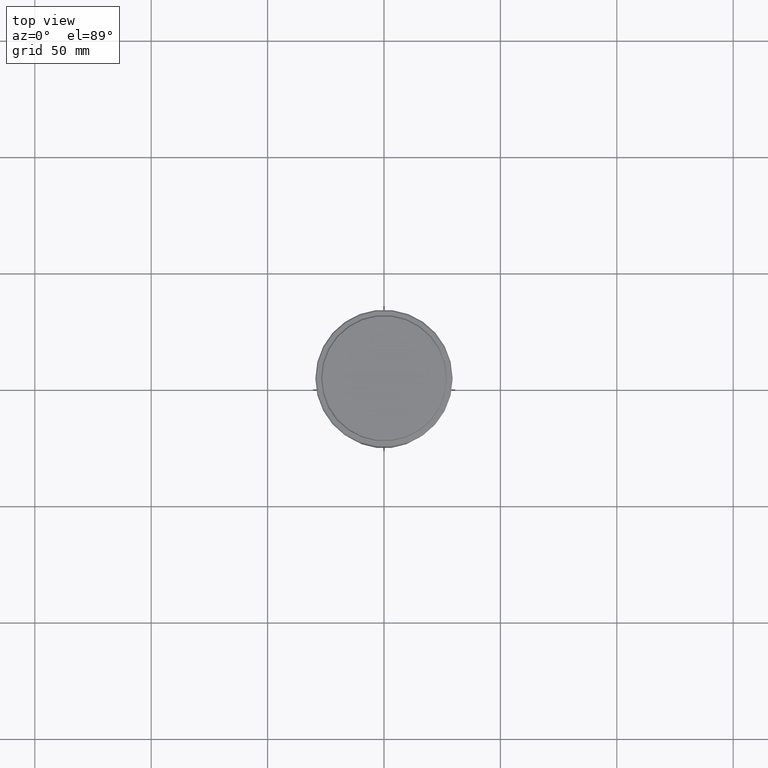
[diagram: clean part render]
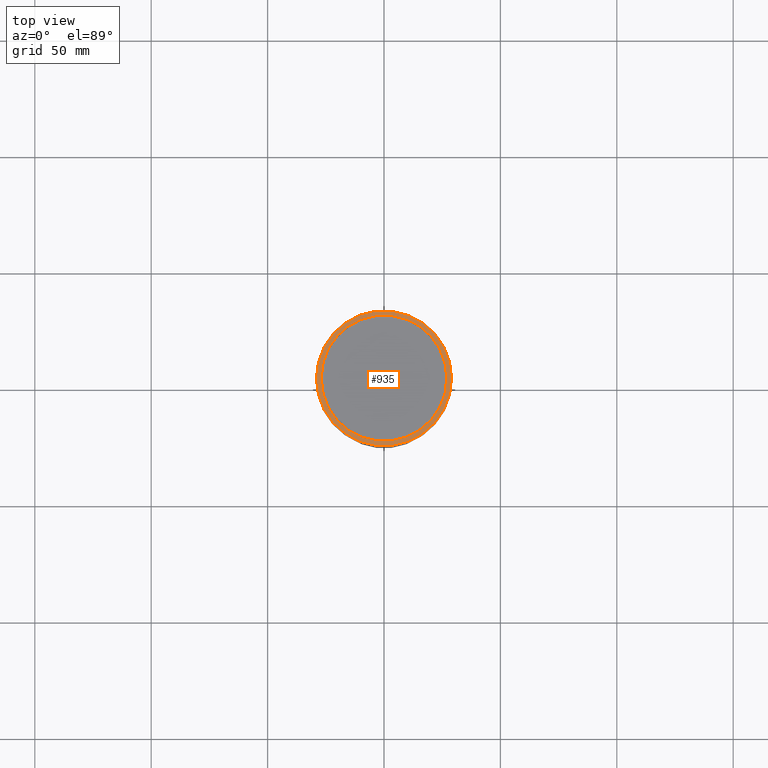
[diagram: same view with one face highlighted and labeled with its STEP entity id]
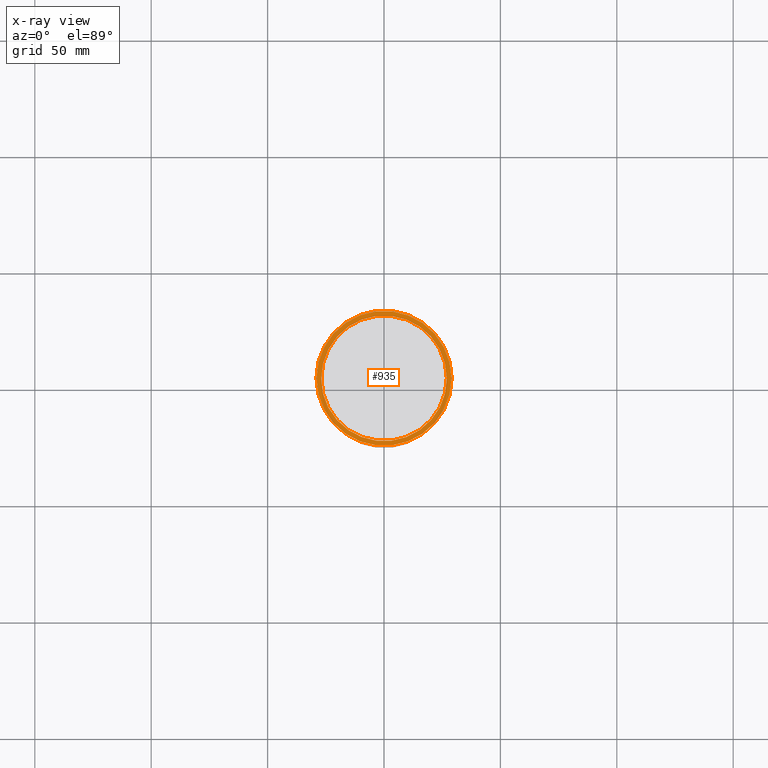
[diagram: x-ray of the same camera — body ghosted, the highlighted face saturated]
A machine part, top view. The second image highlights one B-rep face of the part: STEP entity #935.
The next image is the same camera in x-ray: the body ghosted, the highlighted face saturated — about 0% of this face is hidden behind the body in this view.
In plain terms, the highlighted planar face has unit normal (0, -0, 1).
Its self-contained STEP definition (entity closure, byte-faithful):
#16 = DIRECTION ( 'NONE',  ( -0.000000000000000000, -0.000000000000000000, 1.000000000000000000 ) ) ;
#33 = CARTESIAN_POINT ( 'NONE',  ( -29.00000000000005329, 0.000000000000000000, -12.00000000000000355 ) ) ;
#47 = AXIS2_PLACEMENT_3D ( 'NONE', #841, #996, #463 ) ;
#49 = DIRECTION ( 'NONE',  ( -0.000000000000000000, -0.000000000000000000, 1.000000000000000000 ) ) ;
#69 = AXIS2_PLACEMENT_3D ( 'NONE', #262, #699, #1143 ) ;
#105 = ORIENTED_EDGE ( 'NONE', *, *, #1185, .T. ) ;
#121 = CARTESIAN_POINT ( 'NONE',  ( 0.000000000000000000, 0.000000000000000000, -12.00000000000000355 ) ) ;
#137 = CIRCLE ( 'NONE', #991, 26.99999999999999645 ) ;
#214 = ORIENTED_EDGE ( 'NONE', *, *, #973, .T. ) ;
#219 = DIRECTION ( 'NONE',  ( 1.000000000000000000, 0.000000000000000000, 0.000000000000000000 ) ) ;
#262 = CARTESIAN_POINT ( 'NONE',  ( 0.000000000000000000, 0.000000000000000000, -12.00000000000000355 ) ) ;
#280 = AXIS2_PLACEMENT_3D ( 'NONE', #588, #49, #778 ) ;
#345 = CIRCLE ( 'NONE', #69, 26.99999999999999645 ) ;
#353 = CARTESIAN_POINT ( 'NONE',  ( 26.99999999999999645, 0.000000000000000000, -12.00000000000000355 ) ) ;
#386 = VERTEX_POINT ( 'NONE', #407 ) ;
#397 = PLANE ( 'NONE',  #47 ) ;
#407 = CARTESIAN_POINT ( 'NONE',  ( 29.00000000000005329, 3.582091887506010972E-15, -12.00000000000000355 ) ) ;
#463 = DIRECTION ( 'NONE',  ( 1.000000000000000000, 0.000000000000000000, 0.000000000000000000 ) ) ;
#482 = CIRCLE ( 'NONE', #1394, 29.00000000000005329 ) ;
#485 = FACE_OUTER_BOUND ( 'NONE', #1328, .T. ) ;
#524 = CIRCLE ( 'NONE', #280, 29.00000000000005329 ) ;
#532 = CARTESIAN_POINT ( 'NONE',  ( 0.000000000000000000, 0.000000000000000000, -12.00000000000000355 ) ) ;
#588 = CARTESIAN_POINT ( 'NONE',  ( 0.000000000000000000, 0.000000000000000000, -12.00000000000000355 ) ) ;
#594 = ORIENTED_EDGE ( 'NONE', *, *, #954, .T. ) ;
#629 = EDGE_CURVE ( 'NONE', #1213, #645, #137, .T. ) ;
#633 = CARTESIAN_POINT ( 'NONE',  ( -26.99999999999999645, 3.306546357697853339E-15, -12.00000000000000355 ) ) ;
#645 = VERTEX_POINT ( 'NONE', #633 ) ;
#656 = DIRECTION ( 'NONE',  ( 0.000000000000000000, 0.000000000000000000, -1.000000000000000000 ) ) ;
#699 = DIRECTION ( 'NONE',  ( 0.000000000000000000, 0.000000000000000000, -1.000000000000000000 ) ) ;
#717 = ORIENTED_EDGE ( 'NONE', *, *, #629, .T. ) ;
#778 = DIRECTION ( 'NONE',  ( 1.000000000000000000, 0.000000000000000000, 0.000000000000000000 ) ) ;
#841 = CARTESIAN_POINT ( 'NONE',  ( 0.000000000000000000, 26.49999999999999645, -12.00000000000000355 ) ) ;
#854 = FACE_BOUND ( 'NONE', #1224, .T. ) ;
#864 = DIRECTION ( 'NONE',  ( 1.000000000000000000, 0.000000000000000000, 0.000000000000000000 ) ) ;
#935 = ADVANCED_FACE ( 'NONE', ( #485, #854 ), #397, .T. ) ;
#948 = VERTEX_POINT ( 'NONE', #33 ) ;
#954 = EDGE_CURVE ( 'NONE', #645, #1213, #345, .T. ) ;
#973 = EDGE_CURVE ( 'NONE', #948, #386, #524, .T. ) ;
#991 = AXIS2_PLACEMENT_3D ( 'NONE', #532, #656, #864 ) ;
#996 = DIRECTION ( 'NONE',  ( 0.000000000000000000, -0.000000000000000000, 1.000000000000000000 ) ) ;
#1143 = DIRECTION ( 'NONE',  ( 1.000000000000000000, 0.000000000000000000, 0.000000000000000000 ) ) ;
#1185 = EDGE_CURVE ( 'NONE', #386, #948, #482, .T. ) ;
#1213 = VERTEX_POINT ( 'NONE', #353 ) ;
#1224 = EDGE_LOOP ( 'NONE', ( #717, #594 ) ) ;
#1328 = EDGE_LOOP ( 'NONE', ( #214, #105 ) ) ;
#1394 = AXIS2_PLACEMENT_3D ( 'NONE', #121, #16, #219 ) ;